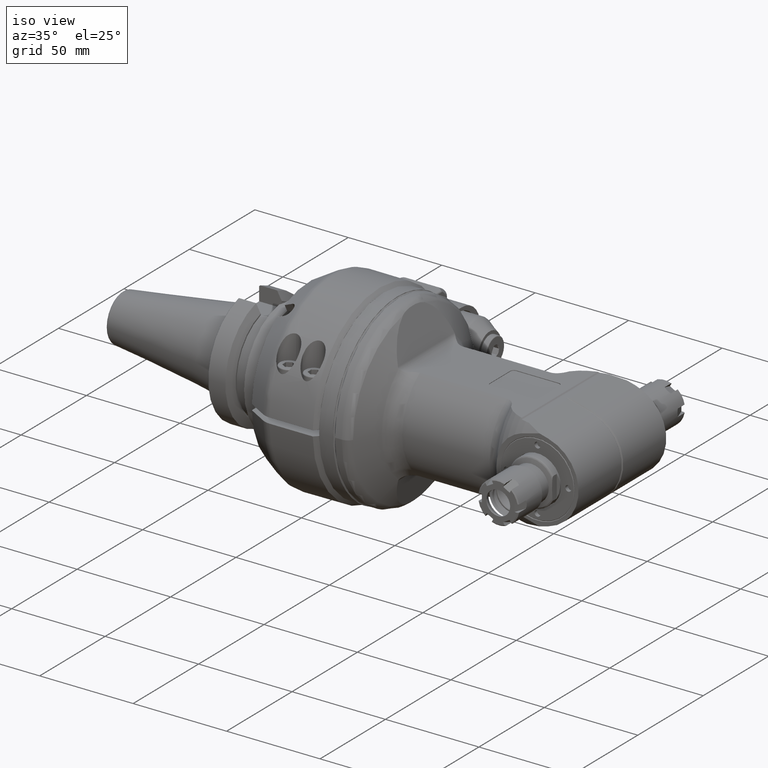
[diagram: clean part render]
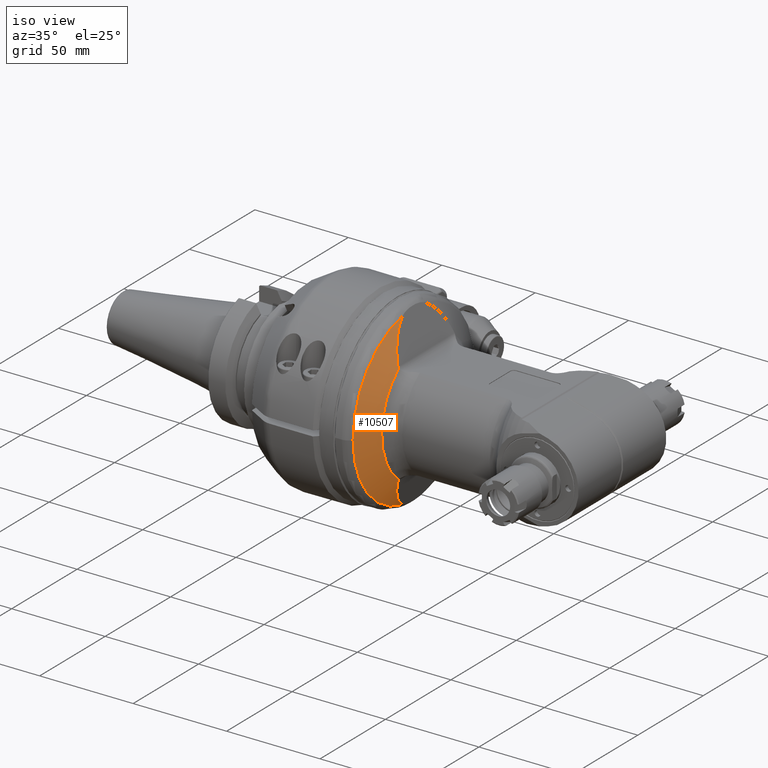
[diagram: same view with one face highlighted and labeled with its STEP entity id]
A machine part, iso view. The second image highlights one B-rep face of the part: STEP entity #10507.
In plain terms, the highlighted conical surface has half-angle 60 deg.
Its self-contained STEP definition (entity closure, byte-faithful):
#514=CIRCLE('',#11232,1.35826771653543);
#515=CIRCLE('',#11233,1.83070866141732);
#516=CIRCLE('',#11234,1.83070866141732);
#1062=CONICAL_SURFACE('',#11231,1.59448818897638,1.0471975511966);
#1226=FACE_OUTER_BOUND('',#1887,.T.);
#1887=EDGE_LOOP('',(#6978,#6979,#6980,#6981,#6982,#6983,#6984));
#2660=B_SPLINE_CURVE_WITH_KNOTS('',3,(#15678,#15679,#15680,#15681,#15682,
#15683,#15684,#15685),.UNSPECIFIED.,.F.,.F.,(4,2,2,4),(-4.49336199562233,
-4.47017861094728,-4.43766754537717,-4.41821211919539),.UNSPECIFIED.);
#2661=B_SPLINE_CURVE_WITH_KNOTS('',3,(#15688,#15689,#15690,#15691,#15692,
#15693,#15694,#15695),.UNSPECIFIED.,.F.,.F.,(4,2,2,4),(0.0418387464813073,
0.0650221311402248,0.0975331967103372,0.116988622892112),.UNSPECIFIED.);
#4260=ELLIPSE('',#11229,1.22727359906867,0.895227646782274);
#4262=ELLIPSE('',#11235,1.22727359906867,0.895227646782274);
#4288=VERTEX_POINT('',#15658);
#4289=VERTEX_POINT('',#15659);
#4292=VERTEX_POINT('',#15676);
#4293=VERTEX_POINT('',#15677);
#4294=VERTEX_POINT('',#15686);
#4295=VERTEX_POINT('',#15696);
#4296=VERTEX_POINT('',#15698);
#5357=EDGE_CURVE('',#4288,#4289,#4260,.T.);
#5361=EDGE_CURVE('',#4292,#4293,#2660,.T.);
#5362=EDGE_CURVE('',#4292,#4294,#514,.T.);
#5363=EDGE_CURVE('',#4294,#4289,#2661,.T.);
#5364=EDGE_CURVE('',#4295,#4288,#515,.T.);
#5365=EDGE_CURVE('',#4296,#4295,#516,.T.);
#5366=EDGE_CURVE('',#4296,#4293,#4262,.T.);
#6978=ORIENTED_EDGE('',*,*,#5361,.F.);
#6979=ORIENTED_EDGE('',*,*,#5362,.T.);
#6980=ORIENTED_EDGE('',*,*,#5363,.T.);
#6981=ORIENTED_EDGE('',*,*,#5357,.F.);
#6982=ORIENTED_EDGE('',*,*,#5364,.F.);
#6983=ORIENTED_EDGE('',*,*,#5365,.F.);
#6984=ORIENTED_EDGE('',*,*,#5366,.T.);
#10507=ADVANCED_FACE('',(#1226),#1062,.T.);
#11229=AXIS2_PLACEMENT_3D('',#15660,#12466,#12467);
#11231=AXIS2_PLACEMENT_3D('',#15675,#12471,#12472);
#11232=AXIS2_PLACEMENT_3D('',#15687,#12473,#12474);
#11233=AXIS2_PLACEMENT_3D('',#15697,#12475,#12476);
#11234=AXIS2_PLACEMENT_3D('',#15699,#12477,#12478);
#11235=AXIS2_PLACEMENT_3D('',#15700,#12479,#12480);
#12466=DIRECTION('center_axis',(0.939692620785897,0.,0.342020143325699));
#12467=DIRECTION('ref_axis',(0.342020143325699,-5.33959797888103E-16,-0.939692620785897));
#12471=DIRECTION('center_axis',(-1.,0.,0.));
#12472=DIRECTION('ref_axis',(0.,-1.,-4.71959209240214E-14));
#12473=DIRECTION('center_axis',(-1.,0.,0.));
#12474=DIRECTION('ref_axis',(0.,-0.624664511069717,-0.780893237651621));
#12475=DIRECTION('center_axis',(-1.,0.,0.));
#12476=DIRECTION('ref_axis',(0.,-0.177495530843392,-0.984121606576455));
#12477=DIRECTION('center_axis',(-1.,0.,0.));
#12478=DIRECTION('ref_axis',(0.,-0.177495530843392,-0.984121606576455));
#12479=DIRECTION('center_axis',(-0.939692620785897,0.,0.342020143325699));
#12480=DIRECTION('ref_axis',(-0.342020143325699,0.,-0.939692620785897));
#15658=CARTESIAN_POINT('',(0.647376996757087,-0.324942605677874,1.80163994904724));
#15659=CARTESIAN_POINT('',(0.907167705289764,-0.850278970587795,1.08787084357087));
#15660=CARTESIAN_POINT('Origin',(1.03850219569866,8.74191357972564E-17,
0.72703229677624));
#15675=CARTESIAN_POINT('Origin',(0.783758950109055,0.,0.));
#15676=CARTESIAN_POINT('',(0.920140903461024,-0.848461639051575,-1.06066207476299));
#15677=CARTESIAN_POINT('',(0.907167705289764,-0.850278970587795,-1.08787084357087));
#15678=CARTESIAN_POINT('Ctrl Pts',(0.920140903460986,-0.848461639051043,
-1.06066207476319));
#15679=CARTESIAN_POINT('Ctrl Pts',(0.918593034260126,-0.849531094608176,
-1.06323981147494));
#15680=CARTESIAN_POINT('Ctrl Pts',(0.917075664986062,-0.850366995071684,
-1.06593597957281));
#15681=CARTESIAN_POINT('Ctrl Pts',(0.913593246744846,-0.851694072225718,
-1.0725894775814));
#15682=CARTESIAN_POINT('Ctrl Pts',(0.911687463576729,-0.851905393589661,
-1.07663619213477));
#15683=CARTESIAN_POINT('Ctrl Pts',(0.908973332377388,-0.851312130057639,
-1.08308872278138));
#15684=CARTESIAN_POINT('Ctrl Pts',(0.908030192074536,-0.850884939889081,
-1.08550118060463));
#15685=CARTESIAN_POINT('Ctrl Pts',(0.907167705289627,-0.850278970587514,
-1.08787084357074));
#15686=CARTESIAN_POINT('',(0.920140903457874,-0.848461639055512,1.06066207476772));
#15687=CARTESIAN_POINT('Origin',(0.920140903461024,0.,0.));
#15688=CARTESIAN_POINT('Ctrl Pts',(0.920140903457755,-0.848461639053276,
1.06066207476857));
#15689=CARTESIAN_POINT('Ctrl Pts',(0.918593034258014,-0.849531094609343,
1.06323981147869));
#15690=CARTESIAN_POINT('Ctrl Pts',(0.917075664985054,-0.850366995072068,
1.06593597957473));
#15691=CARTESIAN_POINT('Ctrl Pts',(0.913593246744846,-0.851694072225718,
1.0725894775814));
#15692=CARTESIAN_POINT('Ctrl Pts',(0.911687463576728,-0.851905393589661,
1.07663619213477));
#15693=CARTESIAN_POINT('Ctrl Pts',(0.908973332377388,-0.851312130057639,
1.08308872278138));
#15694=CARTESIAN_POINT('Ctrl Pts',(0.908030192074536,-0.850884939889081,
1.08550118060463));
#15695=CARTESIAN_POINT('Ctrl Pts',(0.907167705289627,-0.850278970587514,
1.08787084357074));
#15696=CARTESIAN_POINT('',(0.647376996757087,-1.83070866141732,2.24197150237606E-16));
#15697=CARTESIAN_POINT('Origin',(0.647376996757087,0.,0.));
#15698=CARTESIAN_POINT('',(0.647376996757087,-0.324942605677795,-1.80163994904764));
#15699=CARTESIAN_POINT('Origin',(0.647376996757087,0.,0.));
#15700=CARTESIAN_POINT('Origin',(1.03850219569866,0.,-0.72703229677624));